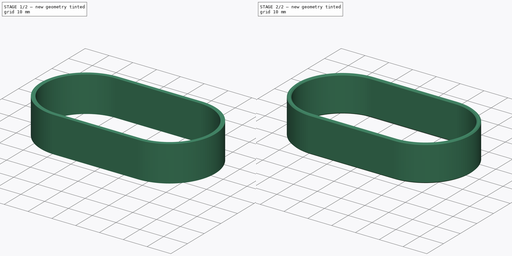
[diagram: build sequence overview — one tinted view per stage of 2, left to right]
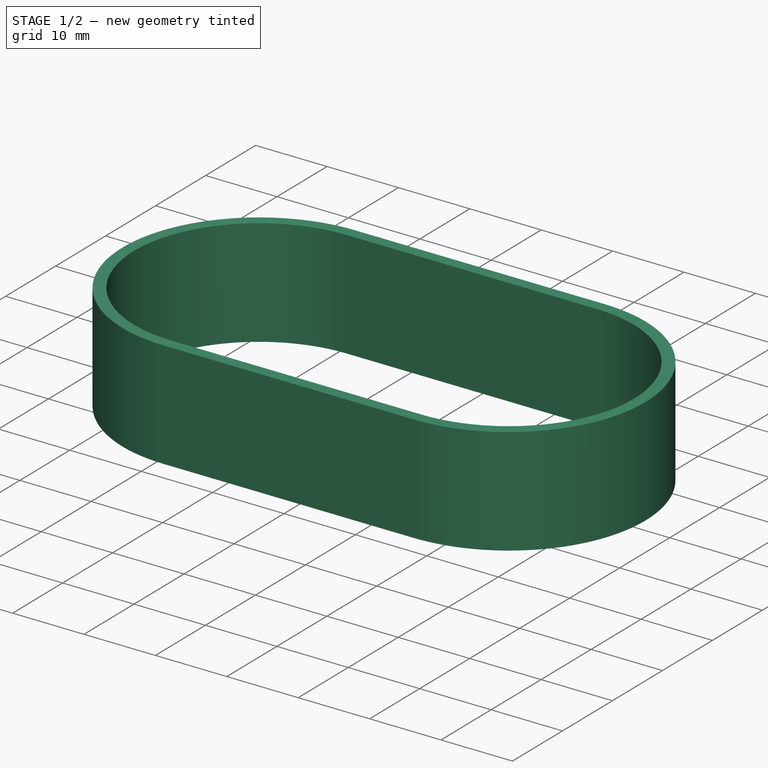
[diagram: stage 1 of 2 — iso view after this stage's code; geometry added in this stage tinted green]
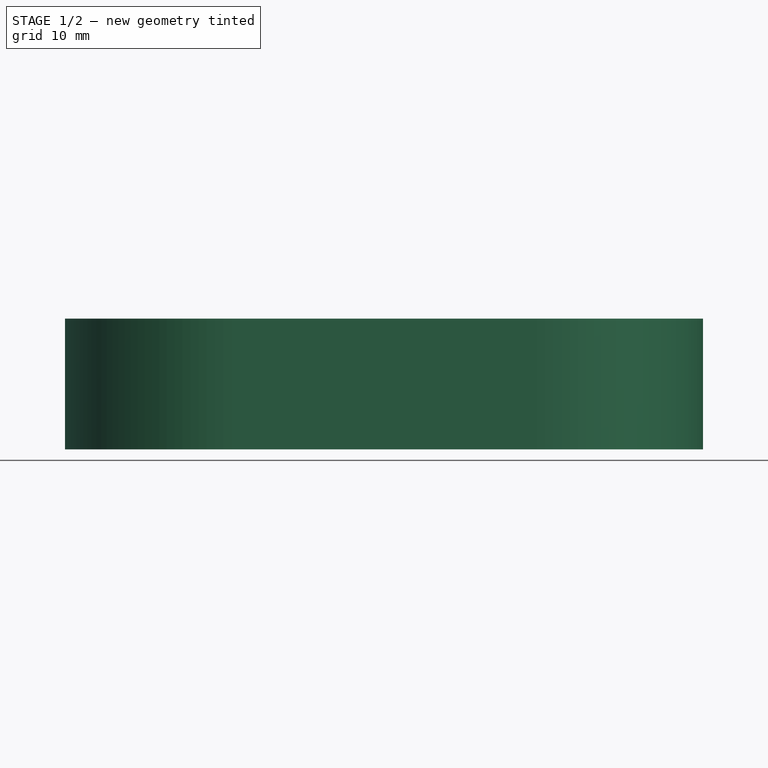
[diagram: stage 1 of 2 — front view after this stage's code; geometry added in this stage tinted green]
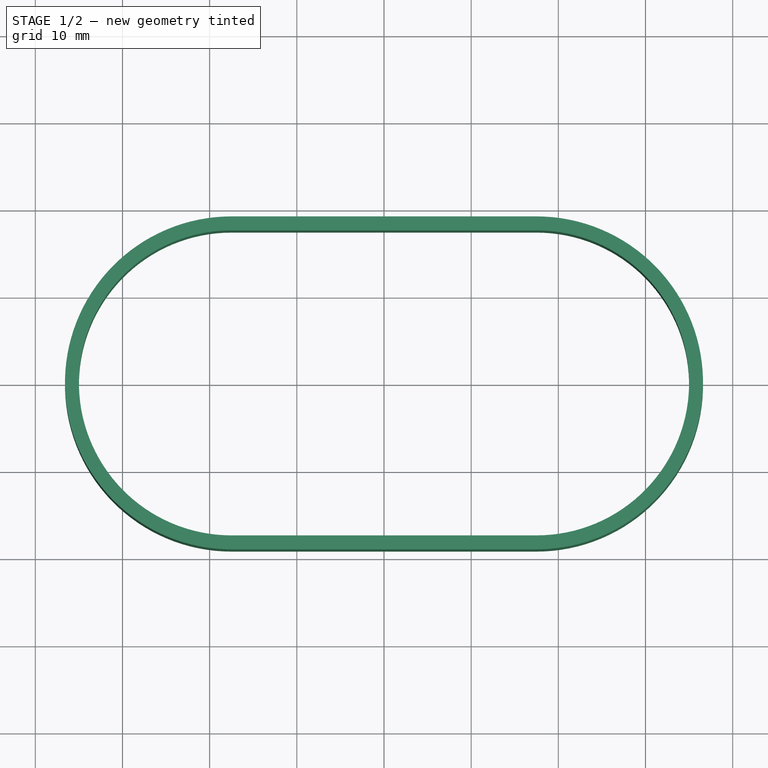
[diagram: stage 1 of 2 — top view after this stage's code; geometry added in this stage tinted green]
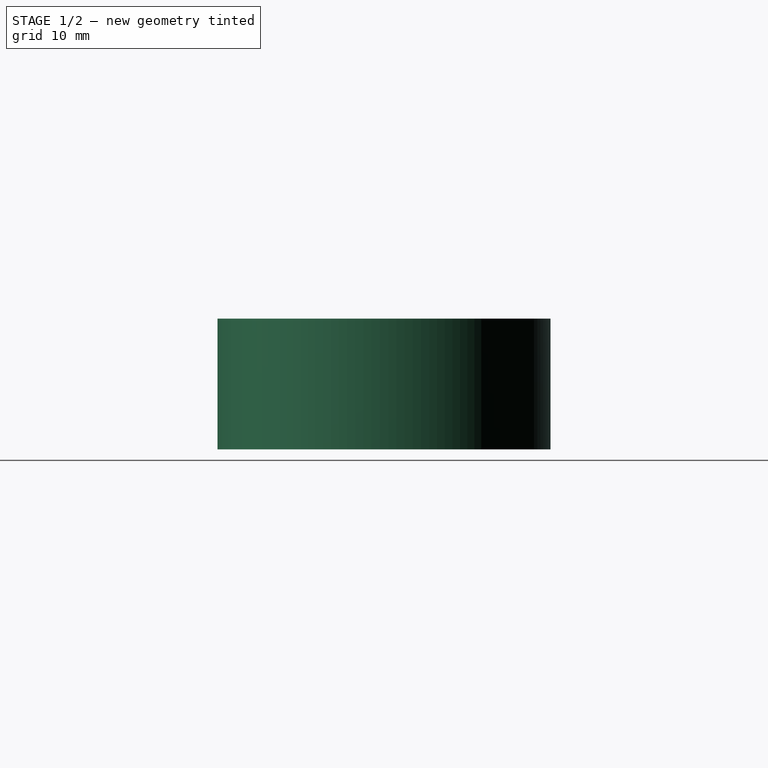
[diagram: stage 1 of 2 — right view after this stage's code; geometry added in this stage tinted green]
FCSTD DOCUMENT  (FreeCAD 1.1R38843 (Git))
Label: cable rings 3
License: All rights reserved
LicenseURL: http://en.wikipedia.org/wiki/All_rights_reserved
objects: Sketcher::SketchObject×2, Spreadsheet::Sheet×1, PartDesign::Pad×1, PartDesign::Chamfer×1, PartDesign::Body×1
note: 11 computed .brp shape members not serialized (recipe doc carries the construction recipe); baked Part::Feature solids carry a one-line shape summary decoded from their .brp

FEATURE [Spreadsheet::Sheet] Spreadsheet  label="q"
  cells = B4='width; C4='height; D4='padding; E4='wall; A5==hiddenref(Body002.config.String); B5(width)==.B9; C5(tall)==.C9; D5(padding)==.D9; E5(wall)==.E9; A6='30x15; B6=30; C6=15; D6=10; E6=1.6; A7='50x25; B7=50; C7=25; D7=15; E7=1.6; A8='60x30; B8=60; C8=30; D8=15; E8=1.6; A9='70x35; B9=70; C9=35; D9=15; E9=1.6; A10='70x40; B10=70; C10=40; D10=15; E10=1.6; A11='x; B11=50; C11=25; D11=15; E11=1.6; A12='x; B12=60; C12=25; D12=15; E12=1.6; A13='x; B13=70; C13=40; D13=15; E13=1.6; A14='x; B14=70; C14=40; D14=15; E14=1.6; A15='x; B15=70; C15=40; D15=15; E15=1.6; B17='height; A18==hiddenref(Body002.kind.String); B18(height)==.B20; A19='circle; B19==width - 0.1; A20='oval; B20==tall
  expr: .cells.Bind.B18.B18 = tuple(.cells; <<B>> + str(hiddenref(Body002.kind) + 19); <<B>> + str(hiddenref(Body002.kind) + 19))
  expr: .cells.Bind.B5.E5 = tuple(.cells; <<B>> + str(hiddenref(Body002.config) + 6); <<E>> + str(hiddenref(Body002.config) + 6))
FEATURE [Sketcher::SketchObject] Sketch002
  ArcFitTolerance = 0
  FullyConstrained = true
  MakeInternals = false
  MapMode = 5
  expr: Constraints[16] = <<q>>.wall
  expr: Constraints[17] = <<q>>.height
  expr: Constraints[18] = <<q>>.width / 2
  sketch-geometry (9):
    g0: ArcOfCircle CenterX=-17.5 CenterY=0 CenterZ=0 NormalX=0 NormalY=0 NormalZ=1 AngleXU=0 Radius=17.5 StartAngle=1.5708 EndAngle=4.71239
    g1: ArcOfCircle CenterX=17.5 CenterY=0 CenterZ=0 NormalX=0 NormalY=0 NormalZ=1 AngleXU=0 Radius=17.5 StartAngle=4.71239 EndAngle=7.85398
    g2: LineSegment StartX=-17.5 StartY=17.5 StartZ=0 EndX=17.5 EndY=17.5 EndZ=0
    g3: LineSegment StartX=-17.5 StartY=-17.5 StartZ=0 EndX=17.5 EndY=-17.5 EndZ=0
    g4: ArcOfCircle CenterX=-17.5 CenterY=0 CenterZ=0 NormalX=0 NormalY=0 NormalZ=1 AngleXU=0 Radius=19.1 StartAngle=1.5708 EndAngle=4.71239
    g5: ArcOfCircle CenterX=17.5 CenterY=0 CenterZ=0 NormalX=0 NormalY=0 NormalZ=1 AngleXU=0 Radius=19.1 StartAngle=4.71239 EndAngle=7.85398
    g6: LineSegment StartX=-17.5 StartY=19.1 StartZ=0 EndX=17.5 EndY=19.1 EndZ=0
    g7: LineSegment StartX=-17.5 StartY=-19.1 StartZ=0 EndX=17.5 EndY=-19.1 EndZ=0
    g8: GeomPoint X=-35 Y=0 Z=0
  constraints (19):
    c: Tangent(g0,g2) = 1.5708
    c: Tangent(g0,g3) = -1.5708
    c: Tangent(g1,g2) = 1.5708
    c: Tangent(g1,g3) = -1.5708
    c: Equal(g0,g1)
    c: PointOnObject(g0,g-1)
    c: Tangent(g4,g6) = 1.5708
    c: Tangent(g4,g7) = -1.5708
    c: Tangent(g5,g6) = 1.5708
    c: Tangent(g5,g7) = -1.5708
    c: Equal(g4,g5)
    c: Symmetric(g0,g1,g-2)
    c: PointOnObject(g8,g0)
    c: PointOnObject(g8,g-1)
    c: Coincident(g4,g0)
    c: Coincident(g1,g5)
    c: DistanceY(g1,g5) = 1.6
    c: DistanceY(g1,g1) = 35
    c: DistanceX(g8,g-1) = 35
FEATURE [Sketcher::SketchObject] Sketch
  ArcFitTolerance = 0
  AttachmentSupport = -> [XY_Plane002]
  FullyConstrained = true
  MakeInternals = false
  MapMode = 5
  expr: Constraints[13] = <<q>>.height
  expr: Constraints[14] = <<q>>.wall
  expr: Constraints[15] = <<q>>.width - <<q>>.height
  sketch-geometry (8):
    g0: ArcOfCircle CenterX=-17.5 CenterY=4.425e-13 CenterZ=0 NormalX=0 NormalY=0 NormalZ=1 AngleXU=0 Radius=17.5 StartAngle=1.5708 EndAngle=4.71239
    g1: ArcOfCircle CenterX=17.5 CenterY=4.425e-13 CenterZ=0 NormalX=0 NormalY=0 NormalZ=1 AngleXU=0 Radius=17.5 StartAngle=4.71239 EndAngle=7.85398
    g2: LineSegment StartX=-17.5 StartY=17.5 StartZ=0 EndX=17.5 EndY=17.5 EndZ=0
    g3: LineSegment StartX=-17.5 StartY=-17.5 StartZ=0 EndX=17.5 EndY=-17.5 EndZ=0
    g4: ArcOfCircle CenterX=-17.5 CenterY=4.425e-13 CenterZ=0 NormalX=0 NormalY=0 NormalZ=1 AngleXU=0 Radius=19.1 StartAngle=1.5708 EndAngle=4.71239
    g5: ArcOfCircle CenterX=17.5 CenterY=4.425e-13 CenterZ=0 NormalX=0 NormalY=0 NormalZ=1 AngleXU=0 Radius=19.1 StartAngle=4.71239 EndAngle=7.85398
    g6: LineSegment StartX=-17.5 StartY=19.1 StartZ=0 EndX=17.5 EndY=19.1 EndZ=0
    g7: LineSegment StartX=-17.5 StartY=-19.1 StartZ=0 EndX=17.5 EndY=-19.1 EndZ=0
  constraints (17):
    c: Tangent(g0,g2) = 1.5708
    c: Tangent(g0,g3) = -1.5708
    c: Tangent(g1,g2) = 1.5708
    c: Tangent(g1,g3) = -1.5708
    c: Equal(g0,g1)
    c: Horizontal(g2)
    c: Tangent(g4,g6) = 1.5708
    c: Tangent(g4,g7) = -1.5708
    c: Tangent(g5,g6) = 1.5708
    c: Tangent(g5,g7) = -1.5708
    c: Equal(g4,g5)
    c: Coincident(g4,g0)
    c: Coincident(g5,g1)
    c: DistanceY(g0,g0) = 35
    c: DistanceY(g0,g4) = 1.6
    c: DistanceX(g0,g1) = 35
    c: Symmetric(g1,g0,g-1)
FEATURE [PartDesign::Pad] Pad
  Direction = (0,0,1)
  Length = 15
  Length2 = 10
  Profile = -> Sketch
  ReferenceAxis = -> Sketch [N_Axis]
  Suppressed = false
  Type = 0
  expr: Length = <<q>>.padding
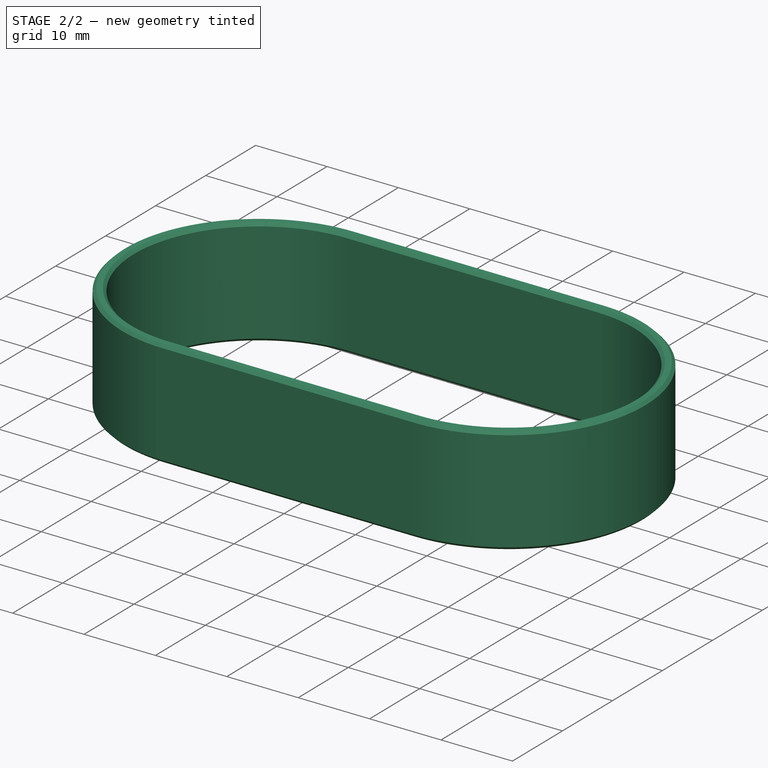
[diagram: stage 2 of 2 — iso view after this stage's code; geometry added in this stage tinted green]
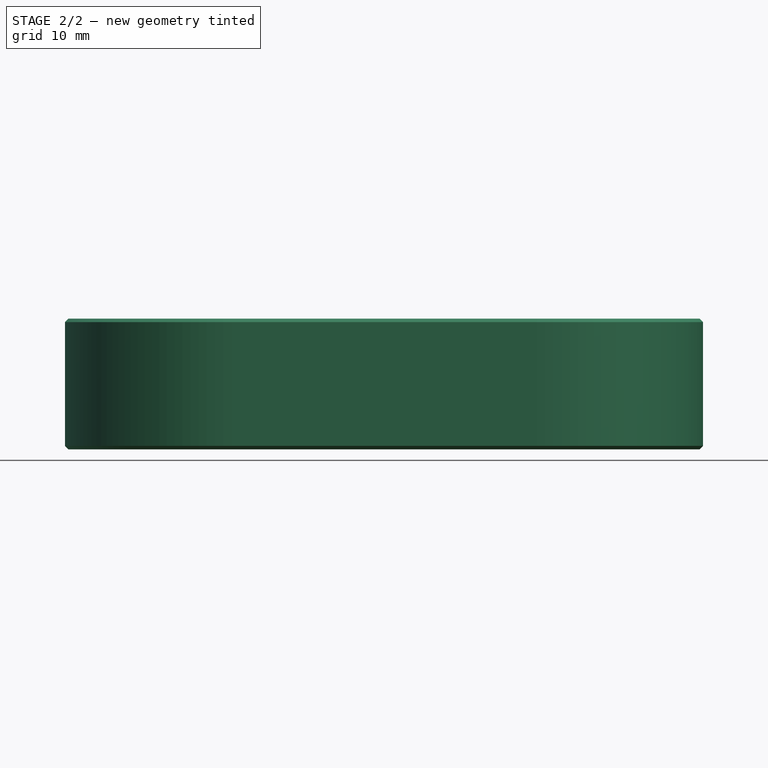
[diagram: stage 2 of 2 — front view after this stage's code; geometry added in this stage tinted green]
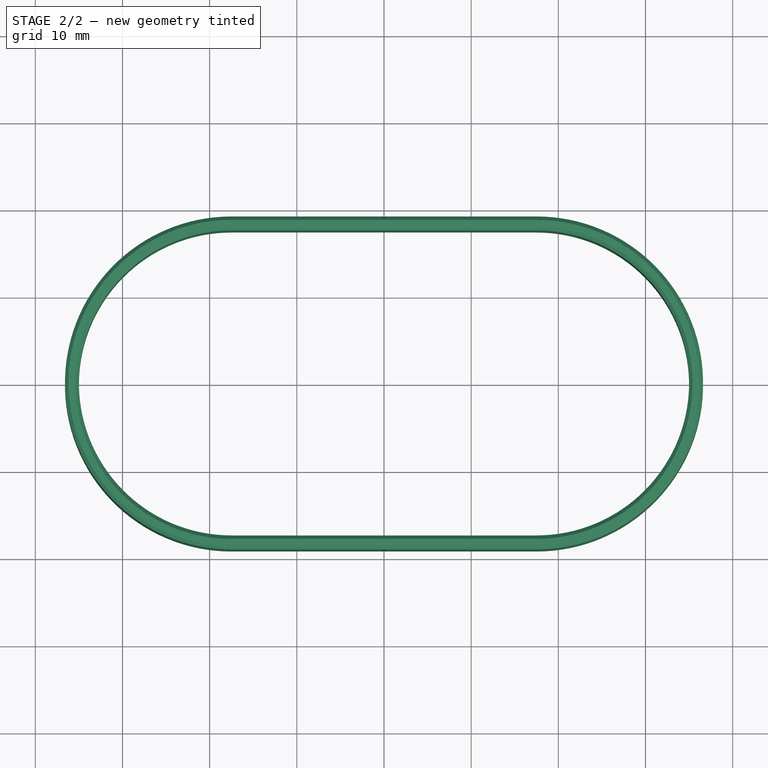
[diagram: stage 2 of 2 — top view after this stage's code; geometry added in this stage tinted green]
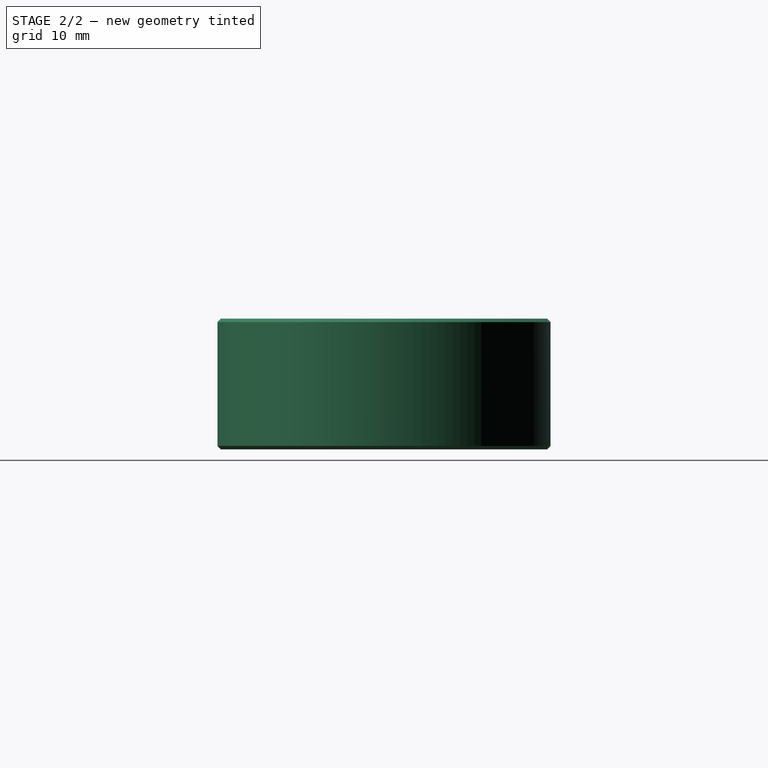
[diagram: stage 2 of 2 — right view after this stage's code; geometry added in this stage tinted green]
FEATURE [PartDesign::Chamfer] Chamfer
  Angle = 45
  Base = -> Pad [Face10,Face9]
  BaseFeature = -> Pad
  ChamferType = 0
  FlipDirection = false
  Size = 0.4
  Size2 = 1
  SupportTransform = false
  Suppressed = false
  UseAllEdges = false
FEATURE [PartDesign::Body] Body002  label="ring"
  AllowCompound = false
  Group = -> [Sketch002,Sketch,Pad,Chamfer]
  Origin = -> Origin002
  Tip = -> Chamfer
  config = 3
  kind = 1
  expr: .config.Enum = Spreadsheet.cells[<<A6:|>>]
  expr: .kind.Enum = Spreadsheet.cells[<<A19:|>>]
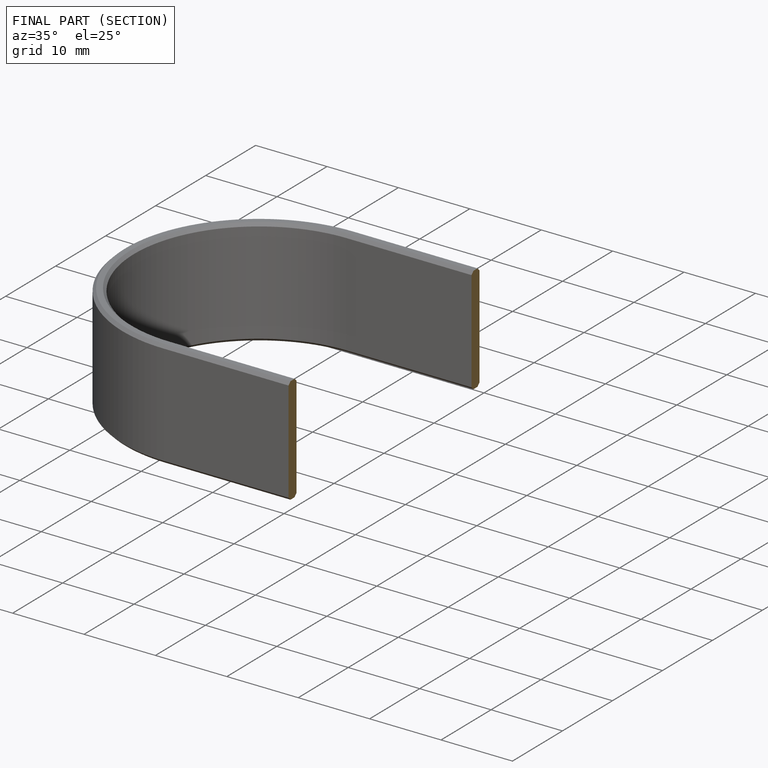
[diagram: finished part — half-section view (interior)]
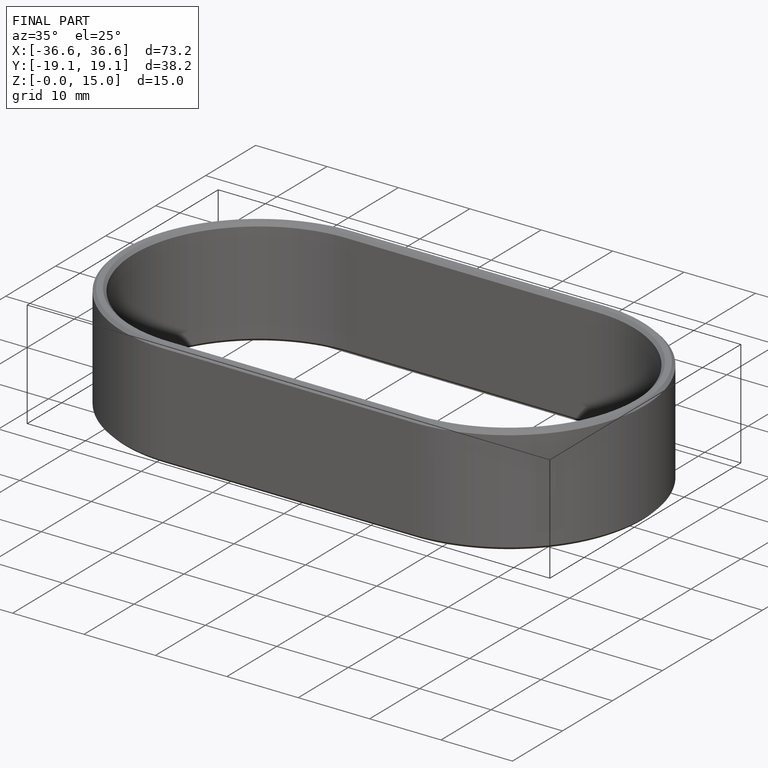
[diagram: finished part — iso view with bounding-box wireframe]
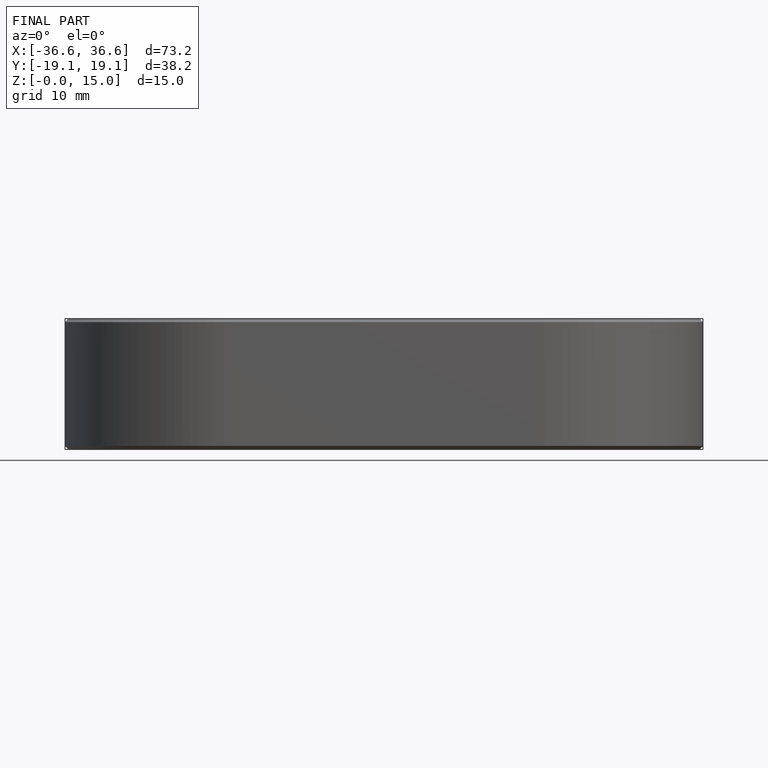
[diagram: finished part — front view with bounding-box wireframe]
